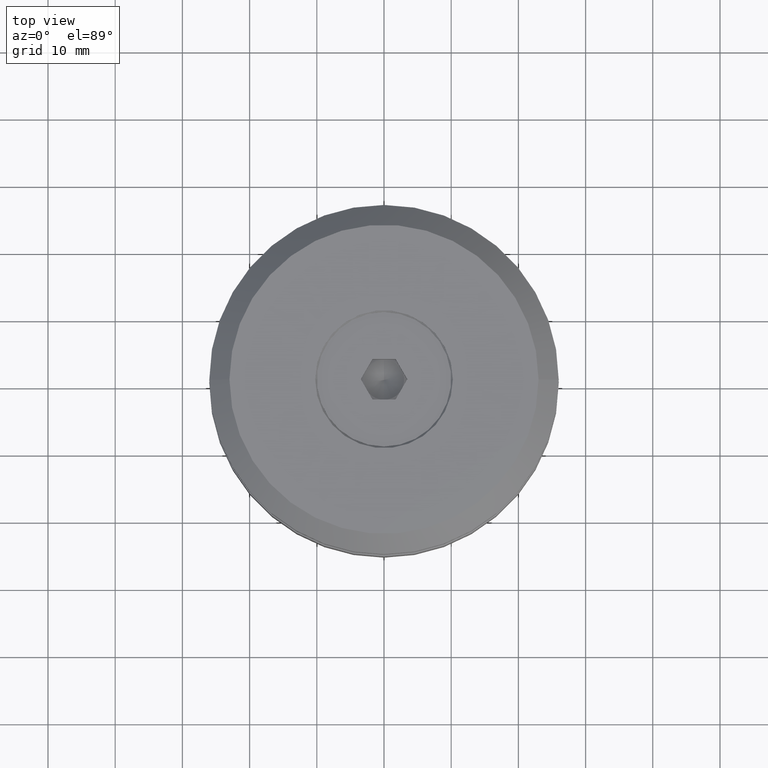
[diagram: clean part render]
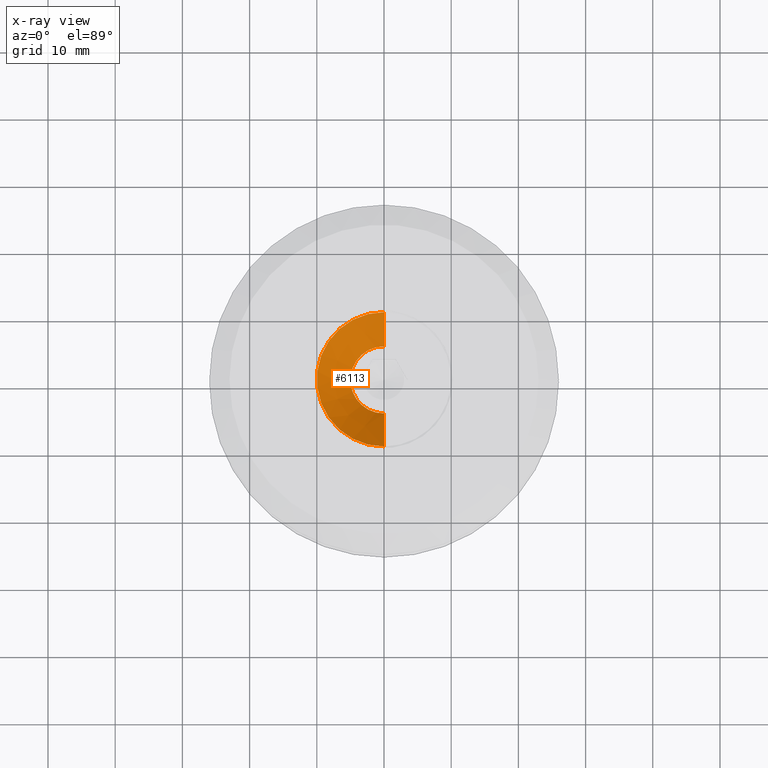
[diagram: x-ray — body ghosted, one internal face saturated and labeled with its STEP entity id]
A machine part, top view, then the same camera in x-ray: the body is ghosted and one INTERNAL B-rep face — a face not visible from any outside direction — is saturated and labeled: STEP entity #6113.
In plain terms, the highlighted conical surface has half-angle 45 deg.
Its self-contained STEP definition (entity closure, byte-faithful):
#1559 = DIRECTION ( 'NONE',  ( 0.000000000000000000, 1.224646799147363561E-16, -1.000000000000000000 ) ) ;
#1964 = EDGE_CURVE ( 'NONE', #5638, #11462, #12071, .T. ) ;
#2732 = DIRECTION ( 'NONE',  ( 1.165734175856409437E-15, 1.000000000000000000, 1.192622389734043784E-16 ) ) ;
#2839 = DIRECTION ( 'NONE',  ( 0.000000000000000000, 1.224646799147363561E-16, -1.000000000000000000 ) ) ;
#2961 = CARTESIAN_POINT ( 'NONE',  ( 0.000000000000000000, -6.123233995737060626E-17, 0.5000000000000143219 ) ) ;
#3072 = CARTESIAN_POINT ( 'NONE',  ( -5.216347479708367697E-15, -4.999999999999997335, 5.500000000000004441 ) ) ;
#3371 = CONICAL_SURFACE ( 'NONE', #13855, 10.00000000000009237, 0.7853981633974501664 ) ;
#3539 = LINE ( 'NONE', #7518, #13185 ) ;
#4357 = VECTOR ( 'NONE', #14486, 999.9999999999998863 ) ;
#4694 = ORIENTED_EDGE ( 'NONE', *, *, #12527, .F. ) ;
#4793 = VERTEX_POINT ( 'NONE', #6004 ) ;
#4805 = CARTESIAN_POINT ( 'NONE',  ( 5.828670879282098658E-15, 5.000000000000042633, 5.500000000000005329 ) ) ;
#5364 = CARTESIAN_POINT ( 'NONE',  ( 0.000000000000000000, -6.123233995737060626E-17, 0.5000000000000143219 ) ) ;
#5638 = VERTEX_POINT ( 'NONE', #4805 ) ;
#5841 = AXIS2_PLACEMENT_3D ( 'NONE', #12293, #6997, #9595 ) ;
#6004 = CARTESIAN_POINT ( 'NONE',  ( -1.043269495941673855E-14, -9.999999999999998224, 0.5000000000000131006 ) ) ;
#6113 = ADVANCED_FACE ( 'NONE', ( #8964 ), #3371, .T. ) ;
#6997 = DIRECTION ( 'NONE',  ( 0.000000000000000000, 1.224646799147363314E-16, -1.000000000000000000 ) ) ;
#7354 = LINE ( 'NONE', #9295, #4357 ) ;
#7518 = CARTESIAN_POINT ( 'NONE',  ( 1.165734175856420205E-14, 10.00000000000009237, 0.5000000000000155431 ) ) ;
#7825 = EDGE_CURVE ( 'NONE', #11462, #4793, #7354, .T. ) ;
#8964 = FACE_OUTER_BOUND ( 'NONE', #15058, .T. ) ;
#9097 = ORIENTED_EDGE ( 'NONE', *, *, #7825, .T. ) ;
#9295 = CARTESIAN_POINT ( 'NONE',  ( -1.043269495941683637E-14, -10.00000000000009237, 0.5000000000000131006 ) ) ;
#9595 = DIRECTION ( 'NONE',  ( 1.165734175856409437E-15, 1.000000000000000000, 1.734723475976792057E-16 ) ) ;
#10093 = DIRECTION ( 'NONE',  ( 8.242985408089838299E-16, 0.7071067811865521247, -0.7071067811865429098 ) ) ;
#10154 = ORIENTED_EDGE ( 'NONE', *, *, #1964, .T. ) ;
#11462 = VERTEX_POINT ( 'NONE', #3072 ) ;
#12071 = CIRCLE ( 'NONE', #5841, 5.000000000000043521 ) ;
#12293 = CARTESIAN_POINT ( 'NONE',  ( 9.629649721936179265E-31, -6.735557395310515979E-16, 5.500000000000005329 ) ) ;
#12527 = EDGE_CURVE ( 'NONE', #5638, #16349, #3539, .T. ) ;
#13129 = CARTESIAN_POINT ( 'NONE',  ( 1.165734175856420205E-14, 10.00000000000009237, 0.5000000000000155431 ) ) ;
#13164 = EDGE_CURVE ( 'NONE', #16349, #4793, #14169, .T. ) ;
#13185 = VECTOR ( 'NONE', #10093, 999.9999999999998863 ) ;
#13487 = AXIS2_PLACEMENT_3D ( 'NONE', #2961, #2839, #2732 ) ;
#13855 = AXIS2_PLACEMENT_3D ( 'NONE', #5364, #1559, #15873 ) ;
#14169 = CIRCLE ( 'NONE', #13487, 10.00000000000009237 ) ;
#14486 = DIRECTION ( 'NONE',  ( -7.377029351854338850E-16, -0.7071067811865519026, -0.7071067811865431318 ) ) ;
#15058 = EDGE_LOOP ( 'NONE', ( #10154, #9097, #15317, #4694 ) ) ;
#15317 = ORIENTED_EDGE ( 'NONE', *, *, #13164, .F. ) ;
#15873 = DIRECTION ( 'NONE',  ( 1.165734175856409437E-15, 1.000000000000000000, 1.192622389734043784E-16 ) ) ;
#16349 = VERTEX_POINT ( 'NONE', #13129 ) ;